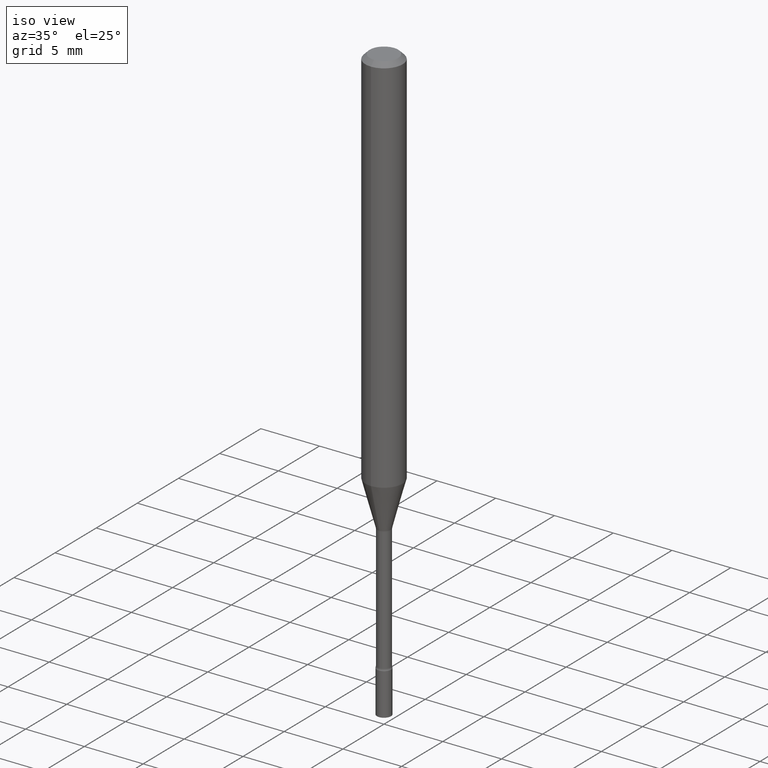
[diagram: clean part render]
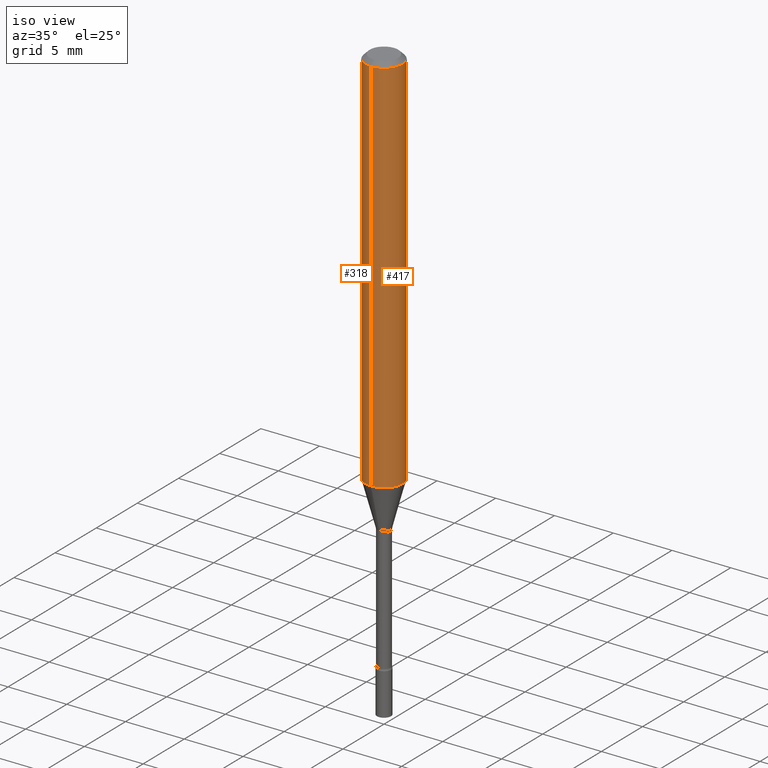
[diagram: same view with one multi-face feature highlighted, each face labeled with its STEP entity id]
A machine part, iso view. The highlighted faces form ONE feature: a constant-radius fillet chain: 2 tangent blend faces with common blend radius 1.5875 mm. The faces share edges in the B-rep.
Their STEP definitions:
[1] entity #318 (Cylinder):
#30 = CARTESIAN_POINT ( 'NONE',  ( 4.440892098500937762E-16, 0.06249999999999548278, -1.285225147374218002 ) ) ;
#34 = VERTEX_POINT ( 'NONE', #200 ) ;
#43 = DIRECTION ( 'NONE',  ( -6.982962677686265922E-15, -1.000000000000000000, 4.370956789862821150E-15 ) ) ;
#56 = VERTEX_POINT ( 'NONE', #442 ) ;
#58 = EDGE_CURVE ( 'NONE', #455, #56, #509, .T. ) ;
#73 = CIRCLE ( 'NONE', #420, 0.06250000000000000000 ) ;
#78 = CARTESIAN_POINT ( 'NONE',  ( 3.668165787215572525E-31, -5.237275598787644570E-17, -0.01500000000000003067 ) ) ;
#108 = DIRECTION ( 'NONE',  ( -6.982962677686265922E-15, -1.000000000000000000, 3.483106191921935554E-15 ) ) ;
#142 = CARTESIAN_POINT ( 'NONE',  ( -4.364351673553916201E-16, -0.06250000000000000000, 2.182198166161513743E-16 ) ) ;
#157 = VERTEX_POINT ( 'NONE', #30 ) ;
#167 = DIRECTION ( 'NONE',  ( -6.982962677686265922E-15, -1.000000000000000000, 3.491517065858421989E-15 ) ) ;
#178 = AXIS2_PLACEMENT_3D ( 'NONE', #404, #367, #167 ) ;
#183 = AXIS2_PLACEMENT_3D ( 'NONE', #78, #238, #108 ) ;
#184 = CARTESIAN_POINT ( 'NONE',  ( 4.440892098500941706E-16, 0.06249999999999995143, -0.01500000000000024751 ) ) ;
#185 = CYLINDRICAL_SURFACE ( 'NONE', #178, 0.06250000000000000000 ) ;
#200 = CARTESIAN_POINT ( 'NONE',  ( -4.364351673553603122E-16, -0.06250000000000451028, -1.285225147374217336 ) ) ;
#204 = VECTOR ( 'NONE', #342, 39.37007874015748143 ) ;
#206 = DIRECTION ( 'NONE',  ( -2.445443858143710310E-29, 3.491517065858421989E-15, 1.000000000000000000 ) ) ;
#238 = DIRECTION ( 'NONE',  ( -2.445443858143710310E-29, 3.491517065858421989E-15, 1.000000000000000000 ) ) ;
#250 = LINE ( 'NONE', #142, #204 ) ;
#255 = EDGE_CURVE ( 'NONE', #157, #34, #73, .T. ) ;
#279 = ORIENTED_EDGE ( 'NONE', *, *, #58, .F. ) ;
#297 = ORIENTED_EDGE ( 'NONE', *, *, #255, .T. ) ;
#318 = ADVANCED_FACE ( 'NONE', ( #473 ), #185, .T. ) ;
#325 = EDGE_LOOP ( 'NONE', ( #371, #297, #383, #279 ) ) ;
#337 = EDGE_CURVE ( 'NONE', #34, #56, #250, .T. ) ;
#342 = DIRECTION ( 'NONE',  ( -2.445443858143710310E-29, 3.491517065858421989E-15, 1.000000000000000000 ) ) ;
#359 = EDGE_CURVE ( 'NONE', #157, #455, #394, .T. ) ;
#367 = DIRECTION ( 'NONE',  ( -2.445443858143710310E-29, 3.491517065858421989E-15, 1.000000000000000000 ) ) ;
#369 = CARTESIAN_POINT ( 'NONE',  ( 3.142945942978125100E-29, -4.487385535527487373E-15, -1.285225147374217780 ) ) ;
#371 = ORIENTED_EDGE ( 'NONE', *, *, #359, .F. ) ;
#383 = ORIENTED_EDGE ( 'NONE', *, *, #337, .T. ) ;
#394 = LINE ( 'NONE', #470, #510 ) ;
#404 = CARTESIAN_POINT ( 'NONE',  ( 0.000000000000000000, 0.000000000000000000, 0.000000000000000000 ) ) ;
#420 = AXIS2_PLACEMENT_3D ( 'NONE', #369, #206, #43 ) ;
#425 = DIRECTION ( 'NONE',  ( -2.445443858143710310E-29, 3.491517065858421989E-15, 1.000000000000000000 ) ) ;
#442 = CARTESIAN_POINT ( 'NONE',  ( -4.364351673553912750E-16, -0.06250000000000005551, -0.01499999999999981209 ) ) ;
#455 = VERTEX_POINT ( 'NONE', #184 ) ;
#470 = CARTESIAN_POINT ( 'NONE',  ( 4.440892098500625669E-16, 0.06250000000000000000, -2.182198166161513743E-16 ) ) ;
#473 = FACE_OUTER_BOUND ( 'NONE', #325, .T. ) ;
#509 = CIRCLE ( 'NONE', #183, 0.06250000000000000000 ) ;
#510 = VECTOR ( 'NONE', #425, 39.37007874015748143 ) ;
[2] entity #417 (Cylinder):
#21 = EDGE_CURVE ( 'NONE', #34, #157, #233, .T. ) ;
#28 = DIRECTION ( 'NONE',  ( -6.982962677686265922E-15, -1.000000000000000000, 3.491517065858421989E-15 ) ) ;
#30 = CARTESIAN_POINT ( 'NONE',  ( 4.440892098500937762E-16, 0.06249999999999548278, -1.285225147374218002 ) ) ;
#34 = VERTEX_POINT ( 'NONE', #200 ) ;
#47 = DIRECTION ( 'NONE',  ( -2.445443858143710310E-29, 3.491517065858421989E-15, 1.000000000000000000 ) ) ;
#52 = EDGE_LOOP ( 'NONE', ( #104, #271, #358, #454 ) ) ;
#56 = VERTEX_POINT ( 'NONE', #442 ) ;
#92 = AXIS2_PLACEMENT_3D ( 'NONE', #131, #295, #379 ) ;
#104 = ORIENTED_EDGE ( 'NONE', *, *, #21, .T. ) ;
#131 = CARTESIAN_POINT ( 'NONE',  ( 3.668165787215572525E-31, -5.237275598787644570E-17, -0.01500000000000003067 ) ) ;
#142 = CARTESIAN_POINT ( 'NONE',  ( -4.364351673553916201E-16, -0.06250000000000000000, 2.182198166161513743E-16 ) ) ;
#157 = VERTEX_POINT ( 'NONE', #30 ) ;
#162 = DIRECTION ( 'NONE',  ( -2.445443858143710310E-29, 3.491517065858421989E-15, 1.000000000000000000 ) ) ;
#184 = CARTESIAN_POINT ( 'NONE',  ( 4.440892098500941706E-16, 0.06249999999999995143, -0.01500000000000024751 ) ) ;
#200 = CARTESIAN_POINT ( 'NONE',  ( -4.364351673553603122E-16, -0.06250000000000451028, -1.285225147374217336 ) ) ;
#202 = CIRCLE ( 'NONE', #92, 0.06250000000000000000 ) ;
#204 = VECTOR ( 'NONE', #342, 39.37007874015748143 ) ;
#207 = FACE_OUTER_BOUND ( 'NONE', #52, .T. ) ;
#233 = CIRCLE ( 'NONE', #516, 0.06250000000000000000 ) ;
#250 = LINE ( 'NONE', #142, #204 ) ;
#258 = CARTESIAN_POINT ( 'NONE',  ( 3.142945942978125100E-29, -4.487385535527487373E-15, -1.285225147374217780 ) ) ;
#271 = ORIENTED_EDGE ( 'NONE', *, *, #359, .T. ) ;
#280 = EDGE_CURVE ( 'NONE', #56, #455, #202, .T. ) ;
#285 = AXIS2_PLACEMENT_3D ( 'NONE', #498, #47, #28 ) ;
#295 = DIRECTION ( 'NONE',  ( -2.445443858143710310E-29, 3.491517065858421989E-15, 1.000000000000000000 ) ) ;
#323 = DIRECTION ( 'NONE',  ( -6.982962677686265922E-15, -1.000000000000000000, 4.370956789862821150E-15 ) ) ;
#337 = EDGE_CURVE ( 'NONE', #34, #56, #250, .T. ) ;
#342 = DIRECTION ( 'NONE',  ( -2.445443858143710310E-29, 3.491517065858421989E-15, 1.000000000000000000 ) ) ;
#358 = ORIENTED_EDGE ( 'NONE', *, *, #280, .F. ) ;
#359 = EDGE_CURVE ( 'NONE', #157, #455, #394, .T. ) ;
#366 = CYLINDRICAL_SURFACE ( 'NONE', #285, 0.06250000000000000000 ) ;
#379 = DIRECTION ( 'NONE',  ( -6.982962677686265922E-15, -1.000000000000000000, 3.483106191921935554E-15 ) ) ;
#394 = LINE ( 'NONE', #470, #510 ) ;
#417 = ADVANCED_FACE ( 'NONE', ( #207 ), #366, .T. ) ;
#425 = DIRECTION ( 'NONE',  ( -2.445443858143710310E-29, 3.491517065858421989E-15, 1.000000000000000000 ) ) ;
#442 = CARTESIAN_POINT ( 'NONE',  ( -4.364351673553912750E-16, -0.06250000000000005551, -0.01499999999999981209 ) ) ;
#454 = ORIENTED_EDGE ( 'NONE', *, *, #337, .F. ) ;
#455 = VERTEX_POINT ( 'NONE', #184 ) ;
#470 = CARTESIAN_POINT ( 'NONE',  ( 4.440892098500625669E-16, 0.06250000000000000000, -2.182198166161513743E-16 ) ) ;
#498 = CARTESIAN_POINT ( 'NONE',  ( 0.000000000000000000, 0.000000000000000000, 0.000000000000000000 ) ) ;
#510 = VECTOR ( 'NONE', #425, 39.37007874015748143 ) ;
#516 = AXIS2_PLACEMENT_3D ( 'NONE', #258, #162, #323 ) ;